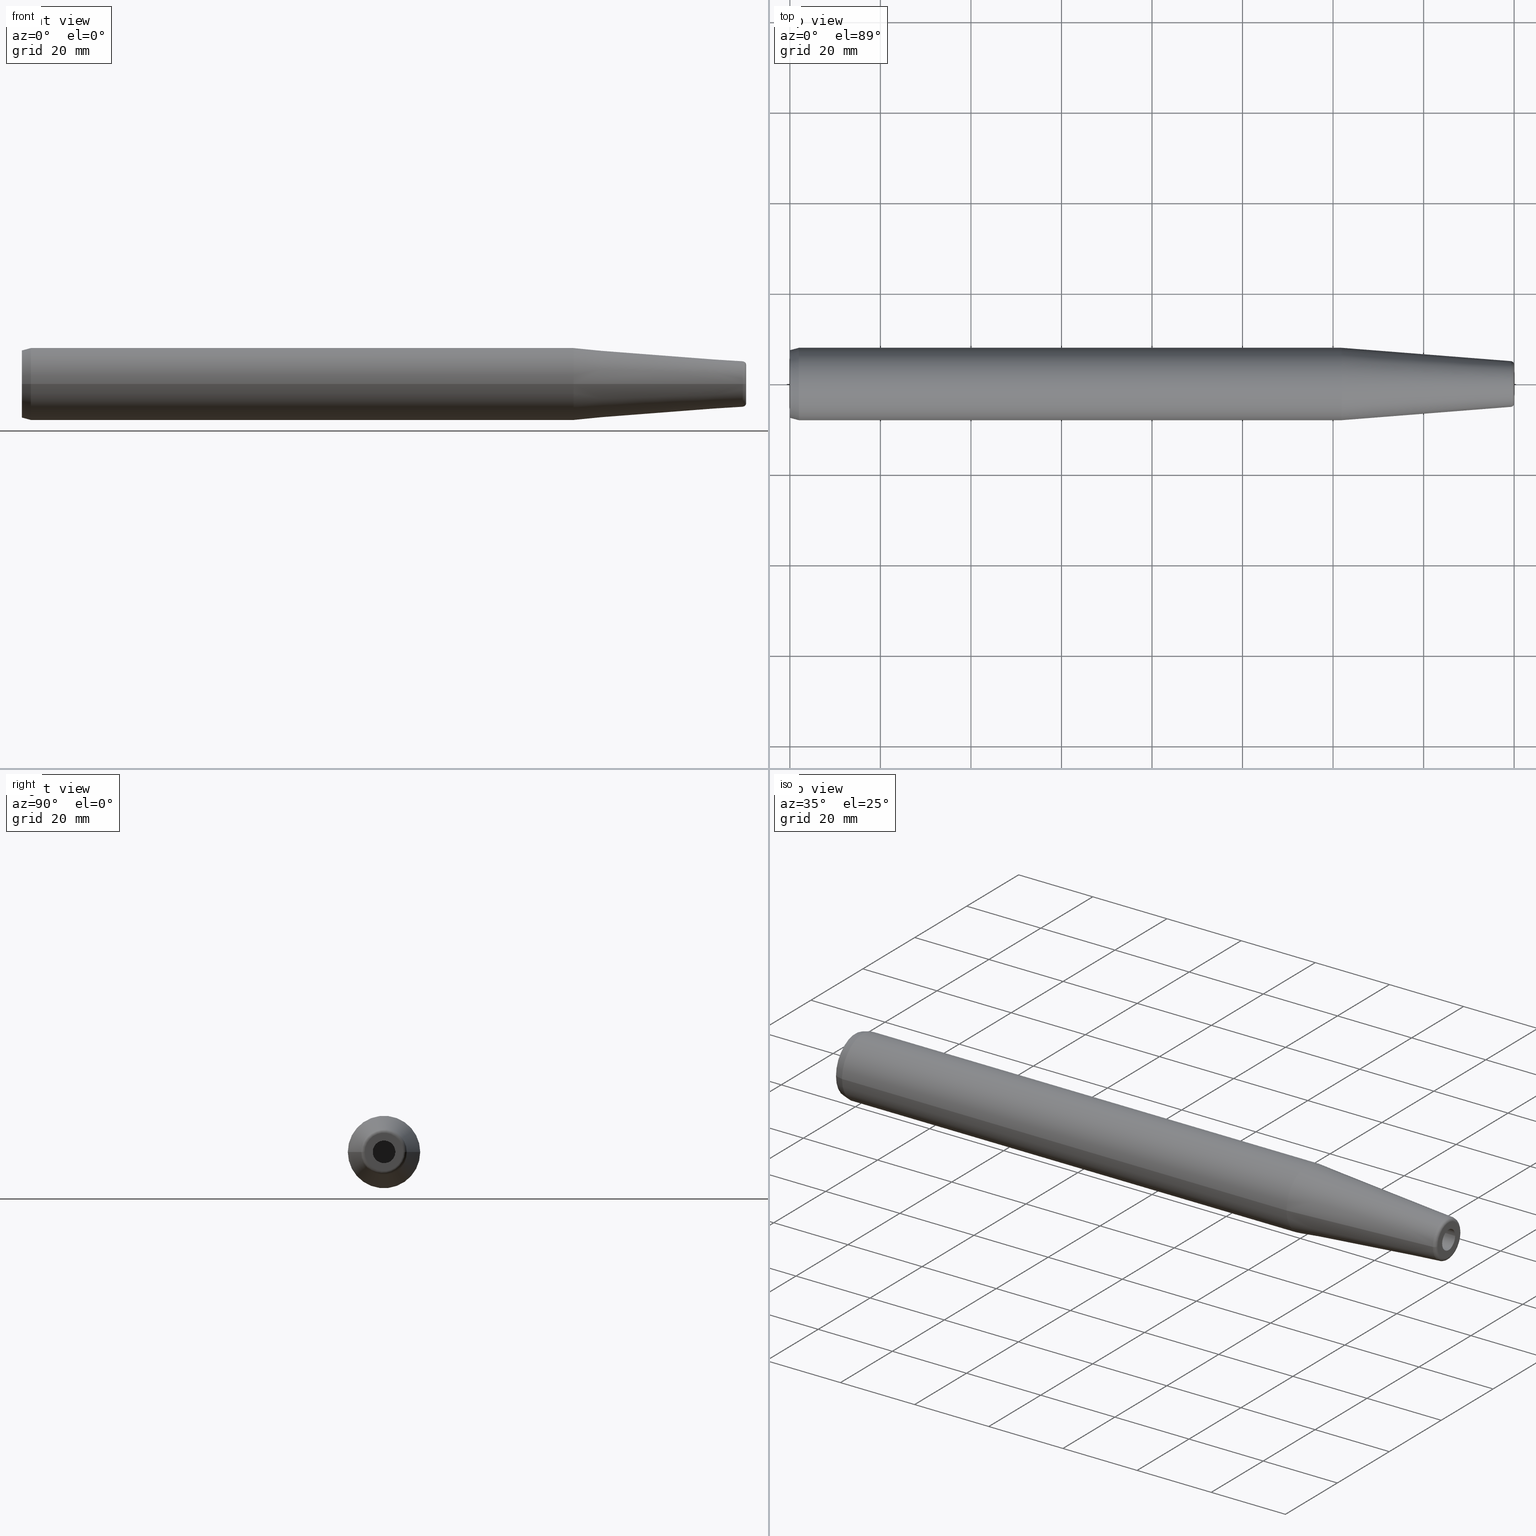
[diagram: canonical four-view strip — front | top / right | iso, engineering-drawing reading convention]
A machine part, canonical four-view strip (front | top / right | iso — engineering-drawing reading convention). The complete STEP part file that produces these views, byte-faithful:
ISO-10303-21;
HEADER;
FILE_DESCRIPTION((''),'2;1');
FILE_NAME('78-160-05-1','2011-09-13T',('mei'),(''),
'PRO/ENGINEER BY PARAMETRIC TECHNOLOGY CORPORATION, 2010430',
'PRO/ENGINEER BY PARAMETRIC TECHNOLOGY CORPORATION, 2010430','');
FILE_SCHEMA(('CONFIG_CONTROL_DESIGN'));
ENDSEC;
DATA;
#1=CARTESIAN_POINT('',(0.E0,0.E0,0.E0));
#2=DIRECTION('',(-1.E0,0.E0,0.E0));
#3=DIRECTION('',(0.E0,1.E0,0.E0));
#4=AXIS2_PLACEMENT_3D('',#1,#2,#3);
#6=CARTESIAN_POINT('',(0.E0,0.E0,0.E0));
#7=DIRECTION('',(-1.E0,0.E0,0.E0));
#8=DIRECTION('',(0.E0,-1.E0,0.E0));
#9=AXIS2_PLACEMENT_3D('',#6,#7,#8);
#11=DIRECTION('',(9.659258262891E-1,2.588190451025E-1,2.147680363326E-10));
#12=VECTOR('',#11,2.070552360964E0);
#13=CARTESIAN_POINT('',(-7.103331256531E-10,7.464101614947E0,
-2.267056698622E-9));
#14=LINE('',#13,#12);
#15=DIRECTION('',(9.659258262891E-1,-2.588190451025E-1,-2.147679551310E-10));
#16=VECTOR('',#15,2.070552360964E0);
#17=CARTESIAN_POINT('',(-7.103331256531E-10,-7.464101614947E0,
2.267055841472E-9));
#18=LINE('',#17,#16);
#19=CARTESIAN_POINT('',(2.E0,0.E0,0.E0));
#20=DIRECTION('',(-1.E0,0.E0,0.E0));
#21=DIRECTION('',(0.E0,-1.E0,0.E0));
#22=AXIS2_PLACEMENT_3D('',#19,#20,#21);
#24=CARTESIAN_POINT('',(1.218813857915E2,0.E0,0.E0));
#25=DIRECTION('',(1.E0,0.E0,0.E0));
#26=DIRECTION('',(0.E0,1.E0,0.E0));
#27=AXIS2_PLACEMENT_3D('',#24,#25,#26);
#29=CARTESIAN_POINT('',(2.E0,0.E0,0.E0));
#30=DIRECTION('',(-1.E0,0.E0,0.E0));
#31=DIRECTION('',(0.E0,1.E0,0.E0));
#32=AXIS2_PLACEMENT_3D('',#29,#30,#31);
#34=DIRECTION('',(-1.E0,1.276256442345E-12,1.520143025202E-11));
#35=VECTOR('',#34,1.198813857920E2);
#36=CARTESIAN_POINT('',(1.218813857915E2,-8.E0,0.E0));
#37=LINE('',#36,#35);
#38=CARTESIAN_POINT('',(1.218813857915E2,0.E0,0.E0));
#39=DIRECTION('',(-1.E0,0.E0,0.E0));
#40=DIRECTION('',(0.E0,1.E0,0.E0));
#41=AXIS2_PLACEMENT_3D('',#38,#39,#40);
#43=DIRECTION('',(-1.E0,-1.276256442345E-12,-1.520143599952E-11));
#44=VECTOR('',#43,1.198813857920E2);
#45=CARTESIAN_POINT('',(1.218813857915E2,8.E0,0.E0));
#46=LINE('',#45,#44);
#47=CARTESIAN_POINT('',(1.592627672766E2,0.E0,0.E0));
#48=DIRECTION('',(-1.E0,0.E0,0.E0));
#49=DIRECTION('',(0.E0,1.E0,0.E0));
#50=AXIS2_PLACEMENT_3D('',#47,#48,#49);
#52=DIRECTION('',(-9.969173337331E-1,7.845909572784E-2,7.746510072684E-13));
#53=VECTOR('',#52,3.749697213622E1);
#54=CARTESIAN_POINT('',(1.592627672766E2,5.058021473660E0,-2.904608751740E-11));
#55=LINE('',#54,#53);
#56=DIRECTION('',(-9.969173337331E-1,-7.845909572784E-2,-7.745870130500E-13));
#57=VECTOR('',#56,3.749697213622E1);
#58=CARTESIAN_POINT('',(1.592627672766E2,-5.058021473660E0,2.904368792798E-11));
#59=LINE('',#58,#57);
#60=CARTESIAN_POINT('',(1.592E2,4.260487606673E0,6.032574717540E-10));
#61=DIRECTION('',(0.E0,1.415935285687E-10,-1.E0));
#62=DIRECTION('',(7.845909573575E-2,9.969173337325E-1,1.411570429745E-10));
#63=AXIS2_PLACEMENT_3D('',#60,#61,#62);
#65=CARTESIAN_POINT('',(1.592E2,-4.260487606673E0,-6.032575827764E-10));
#66=DIRECTION('',(0.E0,-1.415935563243E-10,1.E0));
#67=DIRECTION('',(7.845909573575E-2,-9.969173337325E-1,-1.411570706445E-10));
#68=AXIS2_PLACEMENT_3D('',#65,#66,#67);
#70=CARTESIAN_POINT('',(1.592627672766E2,0.E0,0.E0));
#71=DIRECTION('',(-1.E0,0.E0,0.E0));
#72=DIRECTION('',(0.E0,-1.E0,0.E0));
#73=AXIS2_PLACEMENT_3D('',#70,#71,#72);
#75=CARTESIAN_POINT('',(1.6E2,0.E0,0.E0));
#76=DIRECTION('',(1.E0,0.E0,0.E0));
#77=DIRECTION('',(0.E0,1.E0,0.E0));
#78=AXIS2_PLACEMENT_3D('',#75,#76,#77);
#80=CARTESIAN_POINT('',(1.6E2,0.E0,0.E0));
#81=DIRECTION('',(1.E0,0.E0,0.E0));
#82=DIRECTION('',(0.E0,-1.E0,0.E0));
#83=AXIS2_PLACEMENT_3D('',#80,#81,#82);
#85=CARTESIAN_POINT('',(1.6E2,0.E0,0.E0));
#86=DIRECTION('',(-1.E0,0.E0,0.E0));
#87=DIRECTION('',(0.E0,1.E0,0.E0));
#88=AXIS2_PLACEMENT_3D('',#85,#86,#87);
#90=CARTESIAN_POINT('',(1.6E2,0.E0,0.E0));
#91=DIRECTION('',(-1.E0,0.E0,0.E0));
#92=DIRECTION('',(0.E0,-1.E0,0.E0));
#93=AXIS2_PLACEMENT_3D('',#90,#91,#92);
#95=DIRECTION('',(-1.E0,0.E0,0.E0));
#96=VECTOR('',#95,1.5E1);
#97=CARTESIAN_POINT('',(1.6E2,-2.5E0,0.E0));
#98=LINE('',#97,#96);
#99=DIRECTION('',(-1.E0,0.E0,0.E0));
#100=VECTOR('',#99,1.5E1);
#101=CARTESIAN_POINT('',(1.6E2,2.5E0,0.E0));
#102=LINE('',#101,#100);
#103=CARTESIAN_POINT('',(1.45E2,0.E0,0.E0));
#104=DIRECTION('',(-1.E0,0.E0,0.E0));
#105=DIRECTION('',(0.E0,1.E0,0.E0));
#106=AXIS2_PLACEMENT_3D('',#103,#104,#105);
#108=CARTESIAN_POINT('',(1.45E2,0.E0,0.E0));
#109=DIRECTION('',(1.E0,0.E0,0.E0));
#110=DIRECTION('',(0.E0,1.E0,0.E0));
#111=AXIS2_PLACEMENT_3D('',#108,#109,#110);
#113=CARTESIAN_POINT('',(1.218813857915E2,8.E0,0.E0));
#114=CARTESIAN_POINT('',(1.218813857915E2,-8.E0,0.E0));
#115=VERTEX_POINT('',#113);
#116=VERTEX_POINT('',#114);
#117=CARTESIAN_POINT('',(1.45E2,2.5E0,0.E0));
#118=CARTESIAN_POINT('',(1.45E2,-2.5E0,0.E0));
#119=VERTEX_POINT('',#117);
#120=VERTEX_POINT('',#118);
#121=CARTESIAN_POINT('',(1.6E2,2.5E0,0.E0));
#122=CARTESIAN_POINT('',(1.6E2,-2.5E0,0.E0));
#123=VERTEX_POINT('',#121);
#124=VERTEX_POINT('',#122);
#125=CARTESIAN_POINT('',(0.E0,7.464101615138E0,0.E0));
#126=CARTESIAN_POINT('',(0.E0,-7.464101615138E0,0.E0));
#127=VERTEX_POINT('',#125);
#128=VERTEX_POINT('',#126);
#129=CARTESIAN_POINT('',(2.E0,8.E0,0.E0));
#130=CARTESIAN_POINT('',(2.E0,-8.E0,0.E0));
#131=VERTEX_POINT('',#129);
#132=VERTEX_POINT('',#130);
#133=CARTESIAN_POINT('',(1.592627672766E2,5.058021473660E0,0.E0));
#134=CARTESIAN_POINT('',(1.592627672766E2,-5.058021473660E0,0.E0));
#135=VERTEX_POINT('',#133);
#136=VERTEX_POINT('',#134);
#137=CARTESIAN_POINT('',(1.6E2,4.260487606673E0,0.E0));
#138=CARTESIAN_POINT('',(1.6E2,-4.260487606673E0,0.E0));
#139=VERTEX_POINT('',#137);
#140=VERTEX_POINT('',#138);
#141=CARTESIAN_POINT('',(0.E0,0.E0,0.E0));
#142=DIRECTION('',(1.E0,0.E0,0.E0));
#143=DIRECTION('',(0.E0,-1.E0,0.E0));
#144=AXIS2_PLACEMENT_3D('',#141,#142,#143);
#145=PLANE('',#144);
#147=ORIENTED_EDGE('',*,*,#146,.F.);
#149=ORIENTED_EDGE('',*,*,#148,.F.);
#150=EDGE_LOOP('',(#147,#149));
#151=FACE_OUTER_BOUND('',#150,.F.);
#152=ADVANCED_FACE('',(#151),#145,.F.);
#153=CARTESIAN_POINT('',(9.999999994098E-1,0.E0,0.E0));
#154=DIRECTION('',(1.E0,0.E0,0.E0));
#155=DIRECTION('',(0.E0,0.E0,-1.E0));
#156=AXIS2_PLACEMENT_3D('',#153,#154,#155);
#157=CONICAL_SURFACE('',#156,7.732050807411E0,1.5E1);
#158=ORIENTED_EDGE('',*,*,#146,.T.);
#160=ORIENTED_EDGE('',*,*,#159,.T.);
#162=ORIENTED_EDGE('',*,*,#161,.F.);
#164=ORIENTED_EDGE('',*,*,#163,.F.);
#165=EDGE_LOOP('',(#158,#160,#162,#164));
#166=FACE_OUTER_BOUND('',#165,.F.);
#167=ADVANCED_FACE('',(#166),#157,.T.);
#168=CARTESIAN_POINT('',(9.999999994098E-1,0.E0,0.E0));
#169=DIRECTION('',(1.E0,0.E0,0.E0));
#170=DIRECTION('',(0.E0,0.E0,-1.E0));
#171=AXIS2_PLACEMENT_3D('',#168,#169,#170);
#172=CONICAL_SURFACE('',#171,7.732050807411E0,1.5E1);
#173=ORIENTED_EDGE('',*,*,#148,.T.);
#174=ORIENTED_EDGE('',*,*,#163,.T.);
#176=ORIENTED_EDGE('',*,*,#175,.F.);
#177=ORIENTED_EDGE('',*,*,#159,.F.);
#178=EDGE_LOOP('',(#173,#174,#176,#177));
#179=FACE_OUTER_BOUND('',#178,.F.);
#180=ADVANCED_FACE('',(#179),#172,.T.);
#181=CARTESIAN_POINT('',(-8.E0,0.E0,0.E0));
#182=DIRECTION('',(1.E0,0.E0,0.E0));
#183=DIRECTION('',(0.E0,-1.E0,0.E0));
#184=AXIS2_PLACEMENT_3D('',#181,#182,#183);
#185=CYLINDRICAL_SURFACE('',#184,8.E0);
#186=ORIENTED_EDGE('',*,*,#175,.T.);
#188=ORIENTED_EDGE('',*,*,#187,.F.);
#190=ORIENTED_EDGE('',*,*,#189,.T.);
#192=ORIENTED_EDGE('',*,*,#191,.T.);
#193=EDGE_LOOP('',(#186,#188,#190,#192));
#194=FACE_OUTER_BOUND('',#193,.F.);
#195=ADVANCED_FACE('',(#194),#185,.T.);
#196=CARTESIAN_POINT('',(-8.E0,0.E0,0.E0));
#197=DIRECTION('',(1.E0,0.E0,0.E0));
#198=DIRECTION('',(0.E0,-1.E0,0.E0));
#199=AXIS2_PLACEMENT_3D('',#196,#197,#198);
#200=CYLINDRICAL_SURFACE('',#199,8.E0);
#201=ORIENTED_EDGE('',*,*,#161,.T.);
#202=ORIENTED_EDGE('',*,*,#191,.F.);
#204=ORIENTED_EDGE('',*,*,#203,.F.);
#205=ORIENTED_EDGE('',*,*,#187,.T.);
#206=EDGE_LOOP('',(#201,#202,#204,#205));
#207=FACE_OUTER_BOUND('',#206,.F.);
#208=ADVANCED_FACE('',(#207),#200,.T.);
#209=CARTESIAN_POINT('',(1.405720765340E2,0.E0,0.E0));
#210=DIRECTION('',(-1.E0,0.E0,0.E0));
#211=DIRECTION('',(0.E0,1.E0,0.E0));
#212=AXIS2_PLACEMENT_3D('',#209,#210,#211);
#213=CONICAL_SURFACE('',#212,6.529010736830E0,4.5E0);
#215=ORIENTED_EDGE('',*,*,#214,.F.);
#217=ORIENTED_EDGE('',*,*,#216,.T.);
#218=ORIENTED_EDGE('',*,*,#203,.T.);
#220=ORIENTED_EDGE('',*,*,#219,.F.);
#221=EDGE_LOOP('',(#215,#217,#218,#220));
#222=FACE_OUTER_BOUND('',#221,.F.);
#223=ADVANCED_FACE('',(#222),#213,.T.);
#224=CARTESIAN_POINT('',(1.592E2,0.E0,0.E0));
#225=DIRECTION('',(1.E0,0.E0,0.E0));
#226=DIRECTION('',(0.E0,9.997413103979E-1,2.274450008027E-2));
#227=AXIS2_PLACEMENT_3D('',#224,#225,#226);
#228=TOROIDAL_SURFACE('',#227,4.260487606673E0,8.E-1);
#229=ORIENTED_EDGE('',*,*,#214,.T.);
#231=ORIENTED_EDGE('',*,*,#230,.T.);
#233=ORIENTED_EDGE('',*,*,#232,.F.);
#235=ORIENTED_EDGE('',*,*,#234,.F.);
#236=EDGE_LOOP('',(#229,#231,#233,#235));
#237=FACE_OUTER_BOUND('',#236,.F.);
#238=ADVANCED_FACE('',(#237),#228,.T.);
#239=CARTESIAN_POINT('',(1.592E2,0.E0,0.E0));
#240=DIRECTION('',(1.E0,0.E0,0.E0));
#241=DIRECTION('',(0.E0,-9.997413103979E-1,-2.274450008027E-2));
#242=AXIS2_PLACEMENT_3D('',#239,#240,#241);
#243=TOROIDAL_SURFACE('',#242,4.260487606673E0,8.E-1);
#245=ORIENTED_EDGE('',*,*,#244,.T.);
#246=ORIENTED_EDGE('',*,*,#234,.T.);
#248=ORIENTED_EDGE('',*,*,#247,.F.);
#249=ORIENTED_EDGE('',*,*,#230,.F.);
#250=EDGE_LOOP('',(#245,#246,#248,#249));
#251=FACE_OUTER_BOUND('',#250,.F.);
#252=ADVANCED_FACE('',(#251),#243,.T.);
#253=CARTESIAN_POINT('',(1.405720765340E2,0.E0,0.E0));
#254=DIRECTION('',(-1.E0,0.E0,0.E0));
#255=DIRECTION('',(0.E0,1.E0,0.E0));
#256=AXIS2_PLACEMENT_3D('',#253,#254,#255);
#257=CONICAL_SURFACE('',#256,6.529010736830E0,4.5E0);
#258=ORIENTED_EDGE('',*,*,#244,.F.);
#259=ORIENTED_EDGE('',*,*,#219,.T.);
#260=ORIENTED_EDGE('',*,*,#189,.F.);
#261=ORIENTED_EDGE('',*,*,#216,.F.);
#262=EDGE_LOOP('',(#258,#259,#260,#261));
#263=FACE_OUTER_BOUND('',#262,.F.);
#264=ADVANCED_FACE('',(#263),#257,.T.);
#265=CARTESIAN_POINT('',(1.6E2,0.E0,0.E0));
#266=DIRECTION('',(1.E0,0.E0,0.E0));
#267=DIRECTION('',(0.E0,-1.E0,0.E0));
#268=AXIS2_PLACEMENT_3D('',#265,#266,#267);
#269=PLANE('',#268);
#270=ORIENTED_EDGE('',*,*,#232,.T.);
#271=ORIENTED_EDGE('',*,*,#247,.T.);
#272=EDGE_LOOP('',(#270,#271));
#273=FACE_OUTER_BOUND('',#272,.F.);
#275=ORIENTED_EDGE('',*,*,#274,.T.);
#277=ORIENTED_EDGE('',*,*,#276,.T.);
#278=EDGE_LOOP('',(#275,#277));
#279=FACE_BOUND('',#278,.F.);
#280=ADVANCED_FACE('',(#273,#279),#269,.T.);
#281=CARTESIAN_POINT('',(1.4425E2,0.E0,0.E0));
#282=DIRECTION('',(1.E0,0.E0,0.E0));
#283=DIRECTION('',(0.E0,-1.E0,0.E0));
#284=AXIS2_PLACEMENT_3D('',#281,#282,#283);
#285=CYLINDRICAL_SURFACE('',#284,2.5E0);
#286=ORIENTED_EDGE('',*,*,#274,.F.);
#288=ORIENTED_EDGE('',*,*,#287,.T.);
#290=ORIENTED_EDGE('',*,*,#289,.T.);
#292=ORIENTED_EDGE('',*,*,#291,.F.);
#293=EDGE_LOOP('',(#286,#288,#290,#292));
#294=FACE_OUTER_BOUND('',#293,.F.);
#295=ADVANCED_FACE('',(#294),#285,.F.);
#296=CARTESIAN_POINT('',(1.4425E2,0.E0,0.E0));
#297=DIRECTION('',(1.E0,0.E0,0.E0));
#298=DIRECTION('',(0.E0,-1.E0,0.E0));
#299=AXIS2_PLACEMENT_3D('',#296,#297,#298);
#300=CYLINDRICAL_SURFACE('',#299,2.5E0);
#301=ORIENTED_EDGE('',*,*,#276,.F.);
#302=ORIENTED_EDGE('',*,*,#291,.T.);
#304=ORIENTED_EDGE('',*,*,#303,.F.);
#305=ORIENTED_EDGE('',*,*,#287,.F.);
#306=EDGE_LOOP('',(#301,#302,#304,#305));
#307=FACE_OUTER_BOUND('',#306,.F.);
#308=ADVANCED_FACE('',(#307),#300,.F.);
#309=CARTESIAN_POINT('',(1.45E2,0.E0,0.E0));
#310=DIRECTION('',(1.E0,0.E0,0.E0));
#311=DIRECTION('',(0.E0,-1.E0,0.E0));
#312=AXIS2_PLACEMENT_3D('',#309,#310,#311);
#313=PLANE('',#312);
#314=ORIENTED_EDGE('',*,*,#303,.T.);
#315=ORIENTED_EDGE('',*,*,#289,.F.);
#316=EDGE_LOOP('',(#314,#315));
#317=FACE_OUTER_BOUND('',#316,.F.);
#318=ADVANCED_FACE('',(#317),#313,.T.);
#319=CLOSED_SHELL('',(#152,#167,#180,#195,#208,#223,#238,#252,#264,#280,#295,
#308,#318));
#320=MANIFOLD_SOLID_BREP('',#319);
#322=DIMENSIONAL_EXPONENTS(0.E0,0.E0,0.E0,0.E0,0.E0,0.E0,0.E0);
#324=PLANE_ANGLE_MEASURE_WITH_UNIT(PLANE_ANGLE_MEASURE(1.745329251994E-2),#323);
#325=(CONVERSION_BASED_UNIT('DEGREE',#324)NAMED_UNIT(#322)PLANE_ANGLE_UNIT());
#327=UNCERTAINTY_MEASURE_WITH_UNIT(LENGTH_MEASURE(1.E-2),#321,'closure',
'Maximum model space distance between geometric entities at asserted connectivities');
#328=(GEOMETRIC_REPRESENTATION_CONTEXT(3)GLOBAL_UNCERTAINTY_ASSIGNED_CONTEXT((
#327))GLOBAL_UNIT_ASSIGNED_CONTEXT((#321,#325,#326))REPRESENTATION_CONTEXT
('ID1','3'));
#330=APPLICATION_CONTEXT(
'CONFIGURATION CONTROLLED 3D DESIGNS OF MECHANICAL PARTS AND ASSEMBLIES');
#331=APPLICATION_PROTOCOL_DEFINITION('international standard',
'config_control_design',1994,#330);
#332=DESIGN_CONTEXT('',#330,'design');
#333=MECHANICAL_CONTEXT('',#330,'mechanical');
#334=PRODUCT('78-160-05-1','78-160-05-1','NOT SPECIFIED',(#333));
#335=PRODUCT_DEFINITION_FORMATION_WITH_SPECIFIED_SOURCE('2','LAST_VERSION',#334,
.MADE.);
#339=PRODUCT_CATEGORY('part','');
#340=PRODUCT_RELATED_PRODUCT_CATEGORY('detail','',(#334));
#341=PRODUCT_CATEGORY_RELATIONSHIP('','',#339,#340);
#342=SECURITY_CLASSIFICATION_LEVEL('unclassified');
#343=SECURITY_CLASSIFICATION('','',#342);
#344=CC_DESIGN_SECURITY_CLASSIFICATION(#343,(#335));
#345=APPROVAL_STATUS('approved');
#346=APPROVAL(#345,'');
#347=CC_DESIGN_APPROVAL(#346,(#343,#335,#336));
#348=CALENDAR_DATE(111,13,9);
#349=COORDINATED_UNIVERSAL_TIME_OFFSET(2,0,.AHEAD.);
#350=LOCAL_TIME(14,23,3.6E1,#349);
#351=DATE_AND_TIME(#348,#350);
#352=APPROVAL_DATE_TIME(#351,#346);
#353=DATE_TIME_ROLE('creation_date');
#354=CC_DESIGN_DATE_AND_TIME_ASSIGNMENT(#351,#353,(#336));
#355=DATE_TIME_ROLE('classification_date');
#356=CC_DESIGN_DATE_AND_TIME_ASSIGNMENT(#351,#355,(#343));
#357=PERSON('UNSPECIFIED','UNSPECIFIED',$,$,$,$);
#358=ORGANIZATION('UNSPECIFIED','UNSPECIFIED','UNSPECIFIED');
#359=PERSON_AND_ORGANIZATION(#357,#358);
#360=APPROVAL_ROLE('approver');
#361=APPROVAL_PERSON_ORGANIZATION(#359,#346,#360);
#362=PERSON_AND_ORGANIZATION_ROLE('creator');
#363=CC_DESIGN_PERSON_AND_ORGANIZATION_ASSIGNMENT(#359,#362,(#335,#336));
#364=PERSON_AND_ORGANIZATION_ROLE('design_supplier');
#365=CC_DESIGN_PERSON_AND_ORGANIZATION_ASSIGNMENT(#359,#364,(#335));
#366=PERSON_AND_ORGANIZATION_ROLE('classification_officer');
#367=CC_DESIGN_PERSON_AND_ORGANIZATION_ASSIGNMENT(#359,#366,(#343));
#368=PERSON_AND_ORGANIZATION_ROLE('design_owner');
#369=CC_DESIGN_PERSON_AND_ORGANIZATION_ASSIGNMENT(#359,#368,(#334));
#5=CIRCLE('',#4,7.464101615138E0);
#10=CIRCLE('',#9,7.464101615138E0);
#23=CIRCLE('',#22,8.E0);
#28=CIRCLE('',#27,8.E0);
#33=CIRCLE('',#32,8.E0);
#42=CIRCLE('',#41,8.E0);
#51=CIRCLE('',#50,5.058021473660E0);
#64=CIRCLE('',#63,8.E-1);
#69=CIRCLE('',#68,8.E-1);
#74=CIRCLE('',#73,5.058021473660E0);
#79=CIRCLE('',#78,2.5E0);
#84=CIRCLE('',#83,2.5E0);
#89=CIRCLE('',#88,4.260487606673E0);
#94=CIRCLE('',#93,4.260487606673E0);
#107=CIRCLE('',#106,2.5E0);
#112=CIRCLE('',#111,2.5E0);
#146=EDGE_CURVE('',#127,#128,#5,.T.);
#148=EDGE_CURVE('',#128,#127,#10,.T.);
#159=EDGE_CURVE('',#128,#132,#18,.T.);
#161=EDGE_CURVE('',#131,#132,#33,.T.);
#163=EDGE_CURVE('',#127,#131,#14,.T.);
#175=EDGE_CURVE('',#132,#131,#23,.T.);
#187=EDGE_CURVE('',#115,#131,#46,.T.);
#189=EDGE_CURVE('',#115,#116,#28,.T.);
#191=EDGE_CURVE('',#116,#132,#37,.T.);
#203=EDGE_CURVE('',#115,#116,#42,.T.);
#214=EDGE_CURVE('',#135,#136,#51,.T.);
#216=EDGE_CURVE('',#135,#115,#55,.T.);
#219=EDGE_CURVE('',#136,#116,#59,.T.);
#230=EDGE_CURVE('',#136,#140,#69,.T.);
#232=EDGE_CURVE('',#139,#140,#89,.T.);
#234=EDGE_CURVE('',#135,#139,#64,.T.);
#244=EDGE_CURVE('',#136,#135,#74,.T.);
#247=EDGE_CURVE('',#140,#139,#94,.T.);
#274=EDGE_CURVE('',#123,#124,#79,.T.);
#276=EDGE_CURVE('',#124,#123,#84,.T.);
#287=EDGE_CURVE('',#123,#119,#102,.T.);
#289=EDGE_CURVE('',#119,#120,#112,.T.);
#291=EDGE_CURVE('',#124,#120,#98,.T.);
#303=EDGE_CURVE('',#119,#120,#107,.T.);
#321=(LENGTH_UNIT()NAMED_UNIT(*)SI_UNIT(.MILLI.,.METRE.));
#323=(NAMED_UNIT(*)PLANE_ANGLE_UNIT()SI_UNIT($,.RADIAN.));
#326=(NAMED_UNIT(*)SI_UNIT($,.STERADIAN.)SOLID_ANGLE_UNIT());
#329=ADVANCED_BREP_SHAPE_REPRESENTATION('',(#320),#328);
#336=PRODUCT_DEFINITION('design','',#335,#332);
#337=PRODUCT_DEFINITION_SHAPE('','SHAPE FOR 78-160-05-1.',#336);
#338=SHAPE_DEFINITION_REPRESENTATION(#337,#329);
ENDSEC;
END-ISO-10303-21;
